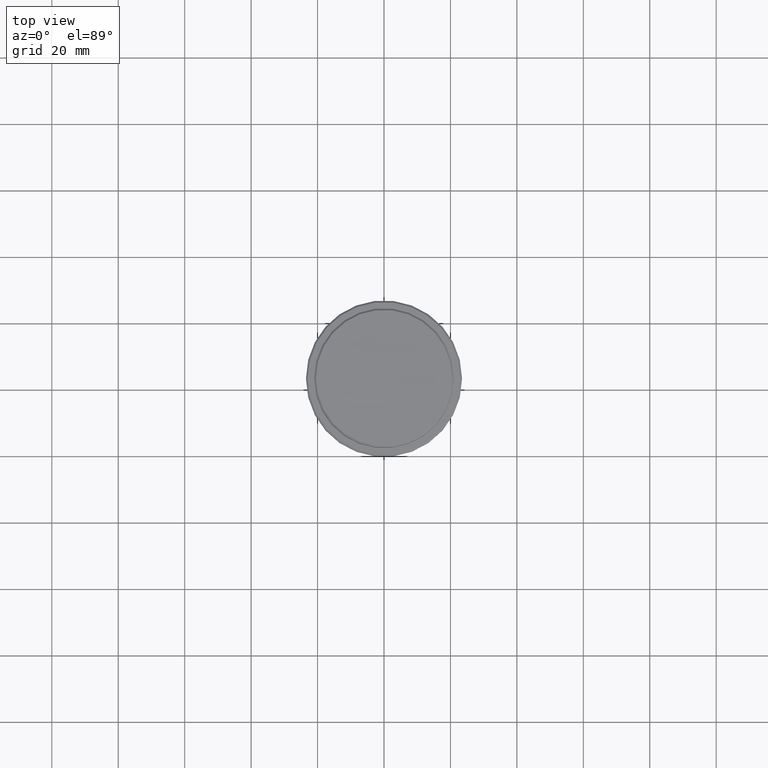
[diagram: clean part render]
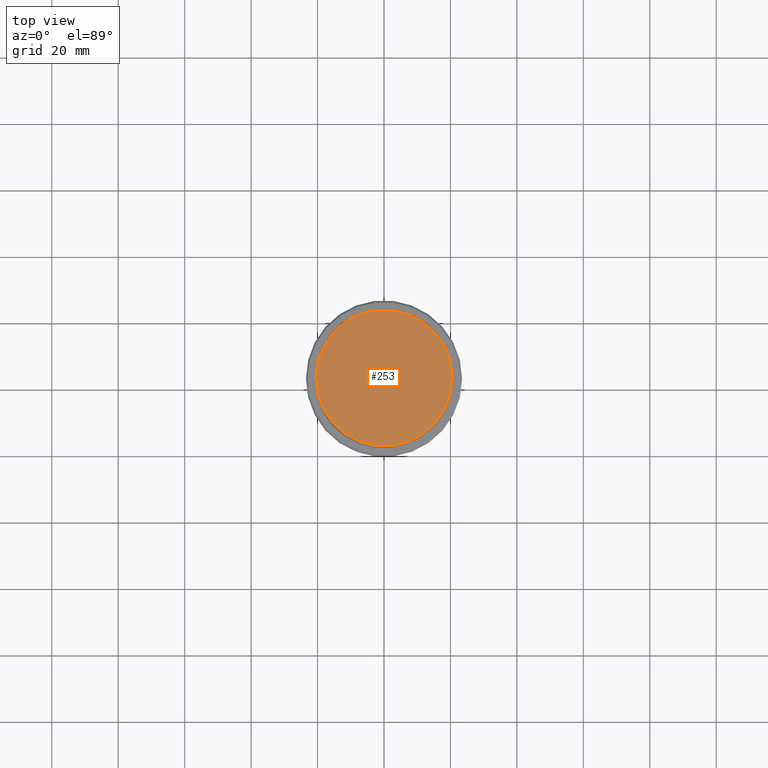
[diagram: same view with one face highlighted and labeled with its STEP entity id]
A machine part, top view. The second image highlights one B-rep face of the part: STEP entity #253.
In plain terms, the highlighted planar face has unit normal (0, -0, 1).
Its self-contained STEP definition (entity closure, byte-faithful):
#35 = DIRECTION ( 'NONE',  ( -0.000000000000000000, -0.000000000000000000, 1.000000000000000000 ) ) ;
#66 = AXIS2_PLACEMENT_3D ( 'NONE', #340, #35, #572 ) ;
#113 = CARTESIAN_POINT ( 'NONE',  ( 0.000000000000000000, 0.000000000000000000, 0.000000000000000000 ) ) ;
#226 = DIRECTION ( 'NONE',  ( 0.000000000000000000, -0.000000000000000000, 1.000000000000000000 ) ) ;
#253 = ADVANCED_FACE ( 'NONE', ( #473 ), #1203, .T. ) ;
#296 = ORIENTED_EDGE ( 'NONE', *, *, #547, .T. ) ;
#307 = EDGE_LOOP ( 'NONE', ( #296, #1297 ) ) ;
#340 = CARTESIAN_POINT ( 'NONE',  ( 0.000000000000000000, 0.000000000000000000, 0.000000000000000000 ) ) ;
#434 = AXIS2_PLACEMENT_3D ( 'NONE', #113, #226, #1135 ) ;
#473 = FACE_OUTER_BOUND ( 'NONE', #307, .T. ) ;
#547 = EDGE_CURVE ( 'NONE', #920, #1018, #622, .T. ) ;
#572 = DIRECTION ( 'NONE',  ( 1.000000000000000000, 0.000000000000000000, 0.000000000000000000 ) ) ;
#622 = CIRCLE ( 'NONE', #1250, 20.49999999999998934 ) ;
#744 = DIRECTION ( 'NONE',  ( -0.000000000000000000, -0.000000000000000000, 1.000000000000000000 ) ) ;
#771 = CARTESIAN_POINT ( 'NONE',  ( -20.49999999999998934, 0.000000000000000000, 0.000000000000000000 ) ) ;
#920 = VERTEX_POINT ( 'NONE', #771 ) ;
#948 = CARTESIAN_POINT ( 'NONE',  ( 20.49999999999998934, 2.541142108230757085E-15, 0.000000000000000000 ) ) ;
#1018 = VERTEX_POINT ( 'NONE', #948 ) ;
#1053 = EDGE_CURVE ( 'NONE', #1018, #920, #1278, .T. ) ;
#1135 = DIRECTION ( 'NONE',  ( 1.000000000000000000, 0.000000000000000000, 0.000000000000000000 ) ) ;
#1203 = PLANE ( 'NONE',  #434 ) ;
#1250 = AXIS2_PLACEMENT_3D ( 'NONE', #1273, #744, #1282 ) ;
#1273 = CARTESIAN_POINT ( 'NONE',  ( 0.000000000000000000, 0.000000000000000000, 0.000000000000000000 ) ) ;
#1278 = CIRCLE ( 'NONE', #66, 20.49999999999998934 ) ;
#1282 = DIRECTION ( 'NONE',  ( 1.000000000000000000, 0.000000000000000000, 0.000000000000000000 ) ) ;
#1297 = ORIENTED_EDGE ( 'NONE', *, *, #1053, .T. ) ;